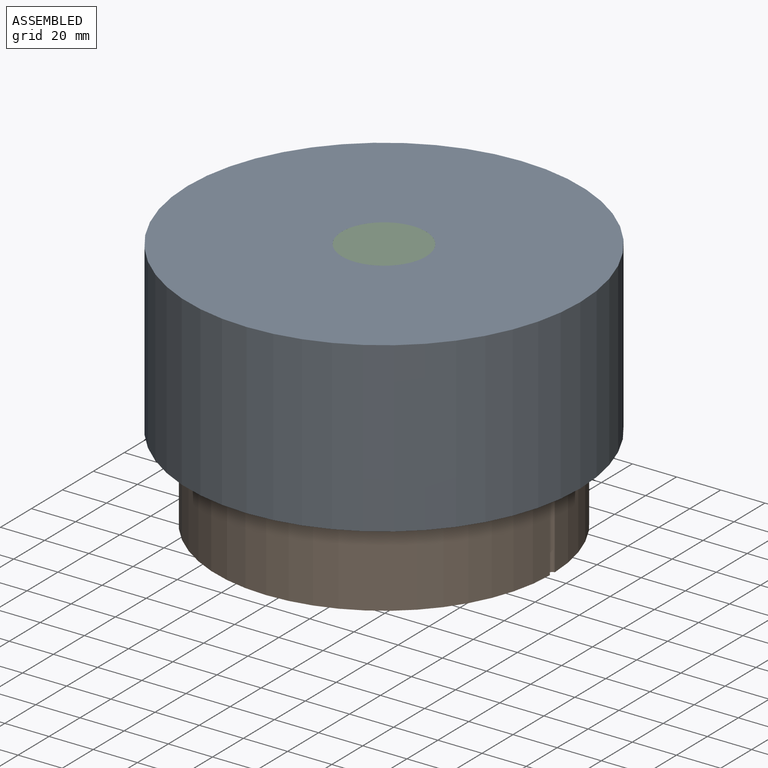
[diagram: assembled view]
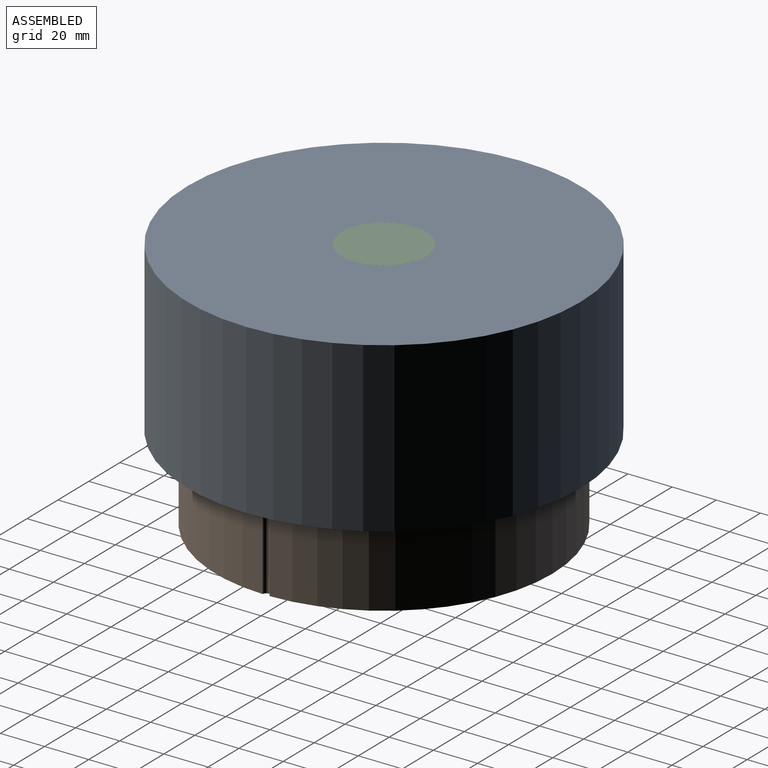
[diagram: assembled view, second angle]
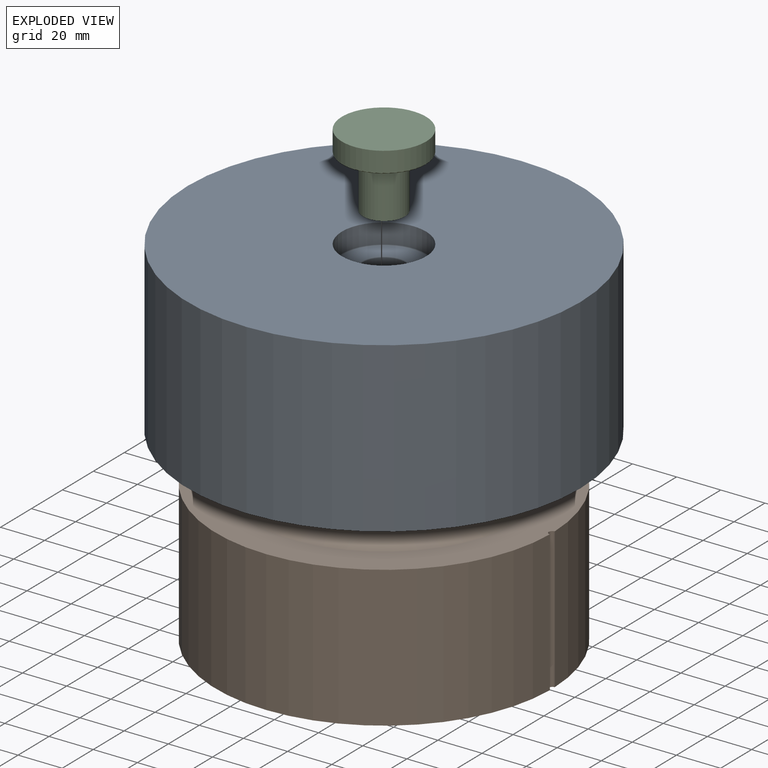
[diagram: exploded view]
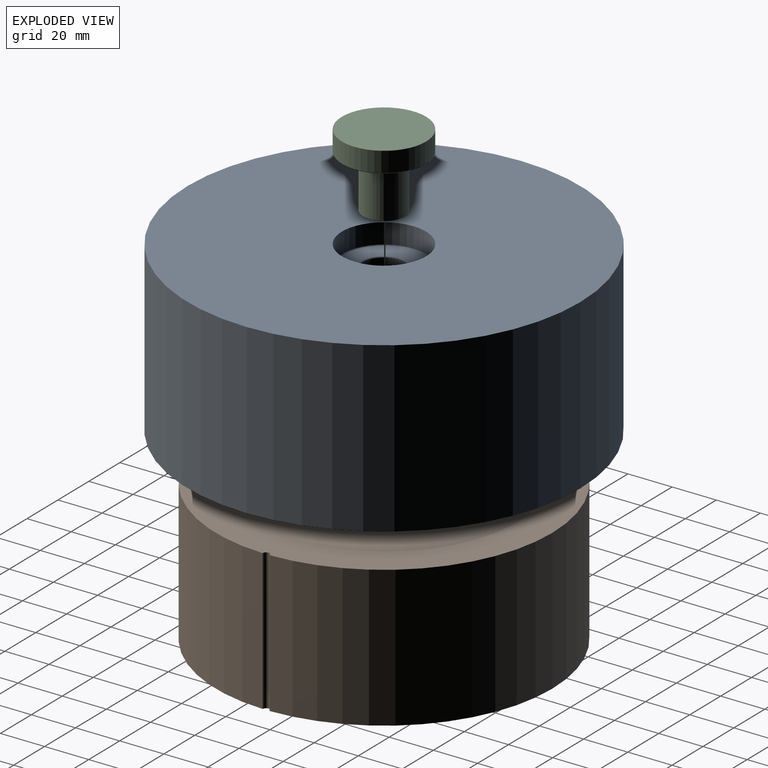
[diagram: exploded view, second angle]
ASSEMBLY  parts=3 mates=2
PART A: 16 faces, bbox 177.8x177.8x76.2 mm
  f0: cylinder r=9.53mm len=23.14mm, axis (0,0,1), area 1385mm2, adj f9,f14
  f1: plane 177.8x177.8mm, normal (0,0,-1), area 6595.1mm2, adj f2,f4,f5,f6,f7
  f2: cylinder r=88.9mm len=177.8mm, axis (0,0,-1), area 42563.4mm2, adj f1,f3
  f3: plane 177.8x177.8mm, normal (0,0,1), area 23688.6mm2, adj f2,f13
  f4: cylinder r=1.59mm len=25.4mm, axis (0,0,-1), area 125.8mm2, adj f1,f5,f7,f8
  f5: cylinder r=76.2mm len=152.37mm, axis (0,0,-1), area 5999.8mm2, adj f1,f4,f6,f8
  f6: cylinder r=1.59mm len=25.4mm, axis (0,0,-1), area 125.8mm2, adj f1,f5,f7,f8
  f7: cylinder r=76.2mm len=152.37mm, axis (0,0,-1), area 5999.8mm2, adj f1,f4,f6,f8
  f8: plane 152.4x152.37mm, normal (0,0,-1), area 2905.7mm2, adj f4,f5,f6,f7,f11
  f9: torus R=2.5mm, axis (0,0,1), area 15092.4mm2, adj f0,f10
  f10: plane 139.7x139.7mm, normal (0,0,-1), area 824.7mm2, adj f9,f11
  f11: cylinder r=69.85mm len=139.7mm, axis (0,0,1), area 668.9mm2, adj f8,f10
  f12: plane 37.08x37.08mm, normal (0,0,1), area 763.9mm2, adj f14,f15
  f13: cylinder r=19.05mm len=38.1mm, axis (0,0,1), area 1079.3mm2, adj f3,f15
  f14: torus R=10.03mm, axis (0,0,1), area 48.7mm2, adj f0,f12
  f15: torus R=18.54mm, axis (0,0,1), area 94.6mm2, adj f12,f13
PART B: 8 faces, bbox 152.4x152.4x76.2 mm
  f0: cylinder r=1.59mm len=63.75mm, axis (0,0,-1), area 315.9mm2, adj f1,f3,f4,f6
  f1: cylinder r=76.2mm len=152.37mm, axis (0,0,-1), area 15059.6mm2, adj f0,f2,f4,f6
  f2: cylinder r=1.59mm len=63.75mm, axis (0,0,-1), area 315.9mm2, adj f1,f3,f4,f6
  f3: cylinder r=76.2mm len=152.37mm, axis (0,0,-1), area 15059.6mm2, adj f0,f2,f4,f6
  f4: plane 152.4x152.37mm, normal (0,0,-1), area 18233.6mm2, adj f0,f1,f2,f3
  f5: torus R=3.57mm, axis (0,0,1), area 11736.5mm2, adj f6,f7
  f6: plane 152.4x152.37mm, normal (0,0,1), area 6868.3mm2, adj f0,f1,f2,f3,f5
  f7: plane 14.27x14.27mm, normal (0,0,1), area 159.9mm2, adj f5
PART C: 7 faces, bbox 41.2x41.2x33.2 mm
  f0: cylinder r=19.05mm len=38.1mm, axis (0,0,-1), area 1079.3mm2, adj f1,f5
  f1: plane 38.1x38.1mm, normal (0,0,1), area 1140.1mm2, adj f0
  f2: plane 37.08x37.08mm, normal (0,0,-1), area 763.9mm2, adj f5,f6
  f3: cylinder r=9.53mm len=23.14mm, axis (0,0,1), area 1384.8mm2, adj f4,f6
  f4: plane 19.05x19.05mm, normal (0,0,-1), area 285mm2, adj f3
  f5: torus R=18.54mm, axis (0,0,1), area 94.6mm2, adj f0,f2
  f6: torus R=10.03mm, axis (0,0,1), area 48.7mm2, adj f2,f3
PLACE A t=(-2.24,94.08,451.37)mm
PLACE B t=(-2.24,94.08,413.02)mm
PLACE C t=(-2.24,94.08,518.05)mm
MATE slider B.f0 <-> A.f4  axis (0,0,-1) through (-78.44,94.08,476.77)mm
MATE fastened C.f3 <-> A.f0  axis (0,0,1) through (-2.24,94.08,517.54)mm
